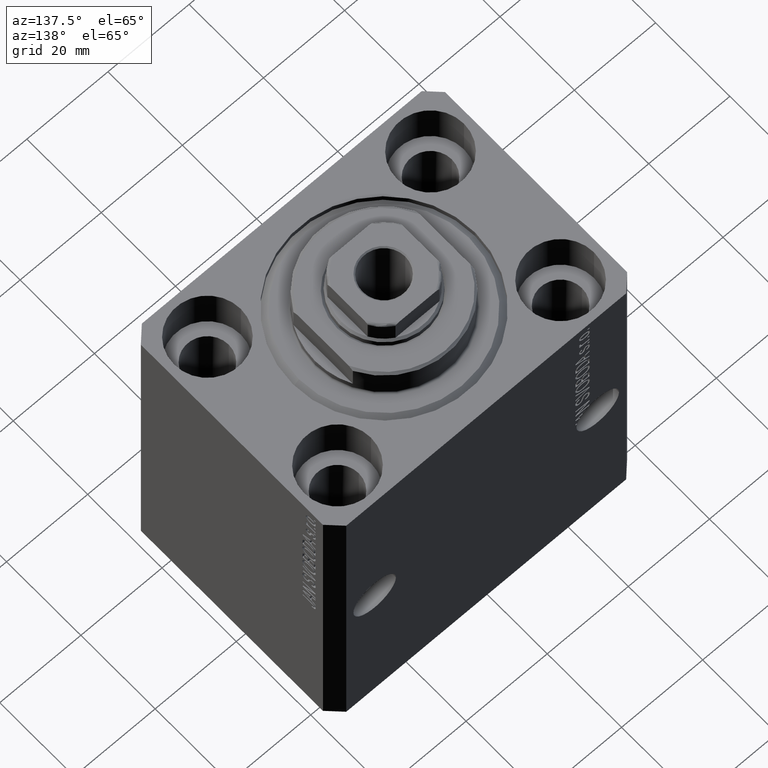
[diagram: clean part render]
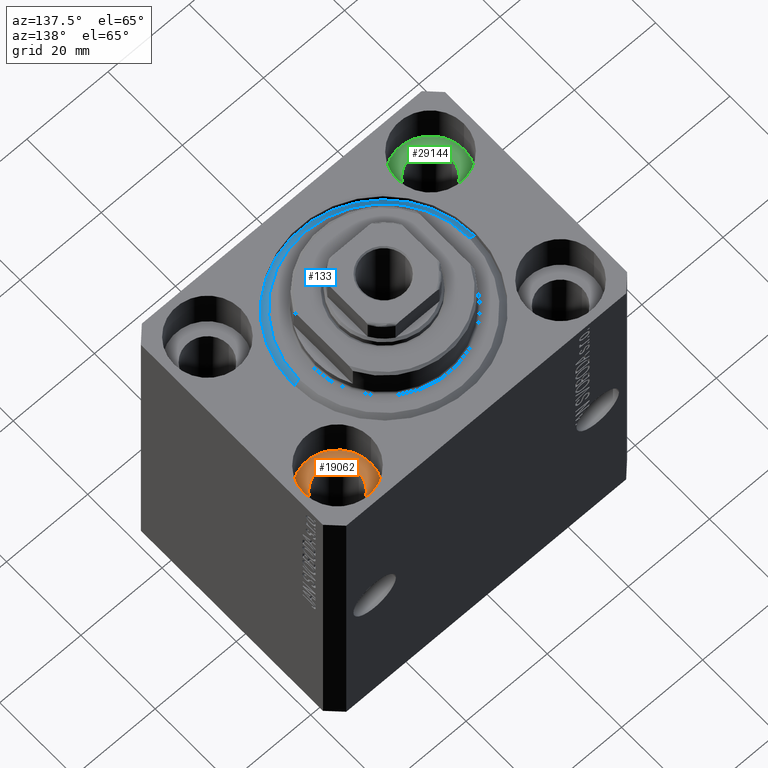
[diagram: same view with three faces highlighted in distinct colors, each labeled with its STEP entity id]
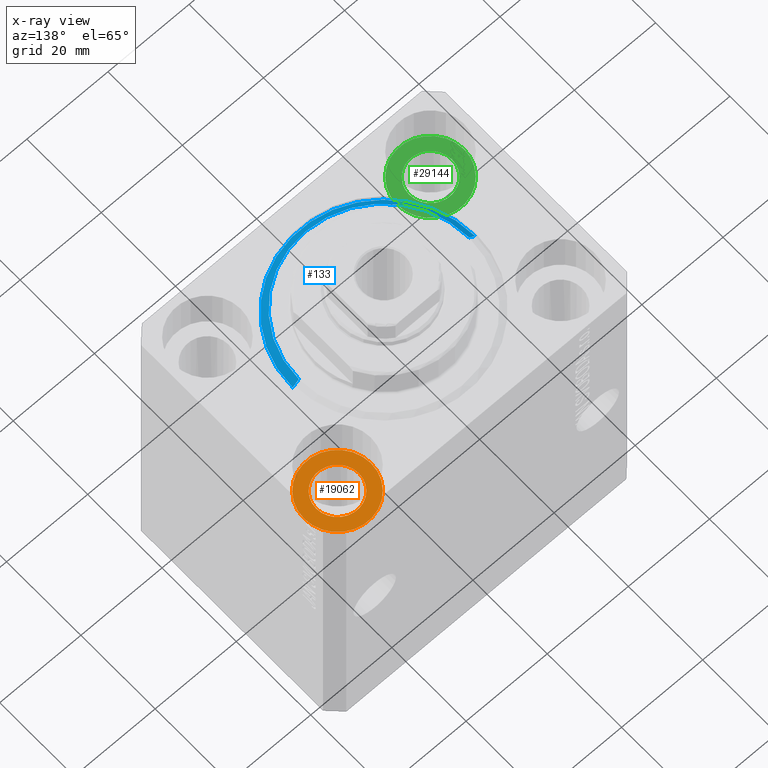
[diagram: x-ray of the same camera — body ghosted, the three highlighted faces saturated]
A machine part, auxiliary view with three faces highlighted in distinct colors.
The next image is the same camera in x-ray (body ghosted, the three faces saturated) — at least one of them is partly hidden behind the body in this view.
Their STEP definitions:

[orange] entity #19062 — the highlighted planar face has unit normal (0, 0, 1).
#895 = VERTEX_POINT ( 'NONE', #6497 ) ;
#1871 = CARTESIAN_POINT ( 'NONE',  ( 27.49999999999999645, 17.50000000000001066, -11.00000000000000000 ) ) ;
#2595 = EDGE_CURVE ( 'NONE', #895, #26863, #8240, .T. ) ;
#3557 = DIRECTION ( 'NONE',  ( 1.000000000000000000, 0.000000000000000000, -0.000000000000000000 ) ) ;
#3654 = EDGE_CURVE ( 'NONE', #38673, #32396, #36741, .T. ) ;
#4179 = ORIENTED_EDGE ( 'NONE', *, *, #2595, .T. ) ;
#5228 = EDGE_CURVE ( 'NONE', #32396, #38673, #14710, .T. ) ;
#6496 = DIRECTION ( 'NONE',  ( 1.000000000000000000, 0.000000000000000000, 0.000000000000000000 ) ) ;
#6497 = CARTESIAN_POINT ( 'NONE',  ( 35.74999999999999289, 17.50000000000001066, -11.00000000000000000 ) ) ;
#6758 = ORIENTED_EDGE ( 'NONE', *, *, #3654, .F. ) ;
#6869 = CARTESIAN_POINT ( 'NONE',  ( 27.49999999999999645, 17.50000000000001066, -11.00000000000000000 ) ) ;
#6906 = CARTESIAN_POINT ( 'NONE',  ( 19.25000000000000000, 17.50000000000001066, -11.00000000000000000 ) ) ;
#8240 = CIRCLE ( 'NONE', #26734, 8.249999999999992895 ) ;
#8684 = AXIS2_PLACEMENT_3D ( 'NONE', #10273, #37455, #6496 ) ;
#10273 = CARTESIAN_POINT ( 'NONE',  ( 27.49999999999999645, 17.50000000000001066, -11.00000000000000000 ) ) ;
#10407 = AXIS2_PLACEMENT_3D ( 'NONE', #19876, #13643, #27228 ) ;
#11019 = EDGE_LOOP ( 'NONE', ( #39853, #6758 ) ) ;
#13340 = FACE_BOUND ( 'NONE', #11019, .T. ) ;
#13643 = DIRECTION ( 'NONE',  ( 0.000000000000000000, 0.000000000000000000, 1.000000000000000000 ) ) ;
#14710 = CIRCLE ( 'NONE', #20403, 5.249999999999997335 ) ;
#15430 = DIRECTION ( 'NONE',  ( 1.000000000000000000, 0.000000000000000000, 0.000000000000000000 ) ) ;
#16655 = DIRECTION ( 'NONE',  ( 1.000000000000000000, 0.000000000000000000, 0.000000000000000000 ) ) ;
#17557 = CARTESIAN_POINT ( 'NONE',  ( 27.49999999999999645, 17.50000000000001066, -11.00000000000000000 ) ) ;
#19062 = ADVANCED_FACE ( 'NONE', ( #13340, #31159 ), #20466, .T. ) ;
#19876 = CARTESIAN_POINT ( 'NONE',  ( 27.49999999999999645, 17.50000000000001066, -11.00000000000000000 ) ) ;
#20403 = AXIS2_PLACEMENT_3D ( 'NONE', #6869, #37185, #16655 ) ;
#20466 = PLANE ( 'NONE',  #25666 ) ;
#22112 = ORIENTED_EDGE ( 'NONE', *, *, #22820, .T. ) ;
#22820 = EDGE_CURVE ( 'NONE', #26863, #895, #32197, .T. ) ;
#25666 = AXIS2_PLACEMENT_3D ( 'NONE', #17557, #34301, #3557 ) ;
#26618 = CARTESIAN_POINT ( 'NONE',  ( 22.25000000000000000, 17.50000000000001066, -11.00000000000000000 ) ) ;
#26734 = AXIS2_PLACEMENT_3D ( 'NONE', #1871, #33033, #15430 ) ;
#26863 = VERTEX_POINT ( 'NONE', #6906 ) ;
#27228 = DIRECTION ( 'NONE',  ( 1.000000000000000000, 0.000000000000000000, 0.000000000000000000 ) ) ;
#30164 = CARTESIAN_POINT ( 'NONE',  ( 32.74999999999999289, 17.50000000000001066, -11.00000000000000000 ) ) ;
#31159 = FACE_OUTER_BOUND ( 'NONE', #41129, .T. ) ;
#32197 = CIRCLE ( 'NONE', #8684, 8.249999999999992895 ) ;
#32396 = VERTEX_POINT ( 'NONE', #30164 ) ;
#33033 = DIRECTION ( 'NONE',  ( 0.000000000000000000, 0.000000000000000000, 1.000000000000000000 ) ) ;
#34301 = DIRECTION ( 'NONE',  ( 0.000000000000000000, 0.000000000000000000, 1.000000000000000000 ) ) ;
#36741 = CIRCLE ( 'NONE', #10407, 5.249999999999997335 ) ;
#37185 = DIRECTION ( 'NONE',  ( 0.000000000000000000, 0.000000000000000000, 1.000000000000000000 ) ) ;
#37455 = DIRECTION ( 'NONE',  ( 0.000000000000000000, 0.000000000000000000, 1.000000000000000000 ) ) ;
#38673 = VERTEX_POINT ( 'NONE', #26618 ) ;
#39853 = ORIENTED_EDGE ( 'NONE', *, *, #5228, .F. ) ;
#41129 = EDGE_LOOP ( 'NONE', ( #4179, #22112 ) ) ;

[blue] entity #133 — the highlighted conical surface has half-angle 45 deg.
#133 = ADVANCED_FACE ( 'NONE', ( #31410 ), #3215, .T. ) ;
#327 = DIRECTION ( 'NONE',  ( -0.000000000000000000, -0.000000000000000000, 1.000000000000000000 ) ) ;
#730 = VERTEX_POINT ( 'NONE', #4517 ) ;
#1722 = ORIENTED_EDGE ( 'NONE', *, *, #42582, .F. ) ;
#2838 = EDGE_CURVE ( 'NONE', #8881, #13667, #33913, .T. ) ;
#3215 = CONICAL_SURFACE ( 'NONE', #10315, 22.50000000000000355, 0.7853981633974517207 ) ;
#3396 = DIRECTION ( 'NONE',  ( -0.7071067811865500152, 8.659560562354963673E-17, 0.7071067811865451302 ) ) ;
#4300 = DIRECTION ( 'NONE',  ( 1.000000000000000000, 0.000000000000000000, 0.000000000000000000 ) ) ;
#4517 = CARTESIAN_POINT ( 'NONE',  ( 20.99999999999998934, 0.000000000000000000, 0.000000000000000000 ) ) ;
#6364 = VECTOR ( 'NONE', #26717, 1000.000000000000114 ) ;
#8881 = VERTEX_POINT ( 'NONE', #30615 ) ;
#10315 = AXIS2_PLACEMENT_3D ( 'NONE', #28515, #24732, #14912 ) ;
#11431 = DIRECTION ( 'NONE',  ( -0.000000000000000000, -0.000000000000000000, -1.000000000000000000 ) ) ;
#12759 = CARTESIAN_POINT ( 'NONE',  ( -22.50000000000000355, 2.755455298081545172E-15, 1.500000000000001332 ) ) ;
#13667 = VERTEX_POINT ( 'NONE', #22552 ) ;
#13681 = DIRECTION ( 'NONE',  ( 1.000000000000000000, 0.000000000000000000, 0.000000000000000000 ) ) ;
#13924 = VECTOR ( 'NONE', #3396, 1000.000000000000114 ) ;
#14261 = AXIS2_PLACEMENT_3D ( 'NONE', #34614, #327, #13681 ) ;
#14912 = DIRECTION ( 'NONE',  ( 1.000000000000000000, 0.000000000000000000, 0.000000000000000000 ) ) ;
#19489 = ORIENTED_EDGE ( 'NONE', *, *, #38501, .T. ) ;
#19496 = EDGE_LOOP ( 'NONE', ( #43928, #41555, #19489, #1722 ) ) ;
#20078 = CIRCLE ( 'NONE', #29260, 20.99999999999998934 ) ;
#22552 = CARTESIAN_POINT ( 'NONE',  ( -22.50000000000000355, 0.000000000000000000, 1.500000000000001332 ) ) ;
#23361 = EDGE_CURVE ( 'NONE', #730, #8881, #20078, .T. ) ;
#24732 = DIRECTION ( 'NONE',  ( -0.000000000000000000, -0.000000000000000000, 1.000000000000000000 ) ) ;
#26514 = CARTESIAN_POINT ( 'NONE',  ( 22.50000000000000355, 0.000000000000000000, 1.500000000000001332 ) ) ;
#26717 = DIRECTION ( 'NONE',  ( 0.7071067811865500152, 0.000000000000000000, 0.7071067811865451302 ) ) ;
#27922 = CARTESIAN_POINT ( 'NONE',  ( 0.000000000000000000, 0.000000000000000000, 0.000000000000000000 ) ) ;
#28515 = CARTESIAN_POINT ( 'NONE',  ( 0.000000000000000000, 0.000000000000000000, 1.500000000000001332 ) ) ;
#29260 = AXIS2_PLACEMENT_3D ( 'NONE', #27922, #11431, #4300 ) ;
#30615 = CARTESIAN_POINT ( 'NONE',  ( -20.99999999999998934, 2.663606788145492628E-15, 0.000000000000000000 ) ) ;
#30716 = CARTESIAN_POINT ( 'NONE',  ( 22.50000000000000355, 2.755455298081545172E-15, 1.500000000000001332 ) ) ;
#31410 = FACE_OUTER_BOUND ( 'NONE', #19496, .T. ) ;
#33484 = CIRCLE ( 'NONE', #14261, 22.50000000000000355 ) ;
#33913 = LINE ( 'NONE', #12759, #13924 ) ;
#34614 = CARTESIAN_POINT ( 'NONE',  ( 0.000000000000000000, 0.000000000000000000, 1.500000000000001332 ) ) ;
#36557 = LINE ( 'NONE', #26514, #6364 ) ;
#38501 = EDGE_CURVE ( 'NONE', #730, #40468, #36557, .T. ) ;
#40468 = VERTEX_POINT ( 'NONE', #30716 ) ;
#41555 = ORIENTED_EDGE ( 'NONE', *, *, #23361, .F. ) ;
#42582 = EDGE_CURVE ( 'NONE', #13667, #40468, #33484, .T. ) ;
#43928 = ORIENTED_EDGE ( 'NONE', *, *, #2838, .F. ) ;

[green] entity #29144 — the highlighted planar face has unit normal (0, 0, 1).
#301 = DIRECTION ( 'NONE',  ( 0.000000000000000000, 0.000000000000000000, 1.000000000000000000 ) ) ;
#542 = DIRECTION ( 'NONE',  ( 1.000000000000000000, 0.000000000000000000, 0.000000000000000000 ) ) ;
#806 = FACE_OUTER_BOUND ( 'NONE', #19242, .T. ) ;
#899 = DIRECTION ( 'NONE',  ( 1.000000000000000000, 0.000000000000000000, 0.000000000000000000 ) ) ;
#2187 = DIRECTION ( 'NONE',  ( 1.000000000000000000, 0.000000000000000000, 0.000000000000000000 ) ) ;
#2486 = EDGE_CURVE ( 'NONE', #6339, #22851, #23888, .T. ) ;
#3144 = CARTESIAN_POINT ( 'NONE',  ( -19.25000000000000355, -17.50000000000000000, -11.00000000000000000 ) ) ;
#3337 = AXIS2_PLACEMENT_3D ( 'NONE', #17285, #27976, #7056 ) ;
#3418 = CARTESIAN_POINT ( 'NONE',  ( -27.50000000000000355, -17.50000000000000000, -11.00000000000000000 ) ) ;
#4142 = FACE_BOUND ( 'NONE', #36248, .T. ) ;
#6339 = VERTEX_POINT ( 'NONE', #31764 ) ;
#6523 = EDGE_CURVE ( 'NONE', #43606, #27405, #10508, .T. ) ;
#7056 = DIRECTION ( 'NONE',  ( 1.000000000000000000, 0.000000000000000000, -0.000000000000000000 ) ) ;
#8858 = CARTESIAN_POINT ( 'NONE',  ( -27.50000000000000355, -17.50000000000000000, -11.00000000000000000 ) ) ;
#9618 = EDGE_CURVE ( 'NONE', #27405, #43606, #28972, .T. ) ;
#9709 = CARTESIAN_POINT ( 'NONE',  ( -22.25000000000000355, -17.50000000000000000, -11.00000000000000000 ) ) ;
#9823 = DIRECTION ( 'NONE',  ( 0.000000000000000000, 0.000000000000000000, 1.000000000000000000 ) ) ;
#10472 = AXIS2_PLACEMENT_3D ( 'NONE', #43359, #26398, #542 ) ;
#10508 = CIRCLE ( 'NONE', #10472, 5.250000000000000888 ) ;
#10661 = ORIENTED_EDGE ( 'NONE', *, *, #30612, .T. ) ;
#14378 = PLANE ( 'NONE',  #3337 ) ;
#17285 = CARTESIAN_POINT ( 'NONE',  ( -27.50000000000000355, -17.50000000000000000, -11.00000000000000000 ) ) ;
#17687 = CARTESIAN_POINT ( 'NONE',  ( -32.75000000000000000, -17.50000000000000000, -11.00000000000000000 ) ) ;
#19242 = EDGE_LOOP ( 'NONE', ( #10661, #23117 ) ) ;
#22851 = VERTEX_POINT ( 'NONE', #3144 ) ;
#23117 = ORIENTED_EDGE ( 'NONE', *, *, #2486, .T. ) ;
#23888 = CIRCLE ( 'NONE', #34572, 8.250000000000000000 ) ;
#24135 = DIRECTION ( 'NONE',  ( 1.000000000000000000, 0.000000000000000000, 0.000000000000000000 ) ) ;
#25408 = AXIS2_PLACEMENT_3D ( 'NONE', #8858, #42522, #2187 ) ;
#26398 = DIRECTION ( 'NONE',  ( 0.000000000000000000, 0.000000000000000000, 1.000000000000000000 ) ) ;
#27405 = VERTEX_POINT ( 'NONE', #9709 ) ;
#27976 = DIRECTION ( 'NONE',  ( 0.000000000000000000, 0.000000000000000000, 1.000000000000000000 ) ) ;
#28972 = CIRCLE ( 'NONE', #25408, 5.250000000000000888 ) ;
#29144 = ADVANCED_FACE ( 'NONE', ( #4142, #806 ), #14378, .T. ) ;
#30391 = AXIS2_PLACEMENT_3D ( 'NONE', #40358, #9823, #899 ) ;
#30612 = EDGE_CURVE ( 'NONE', #22851, #6339, #40371, .T. ) ;
#31764 = CARTESIAN_POINT ( 'NONE',  ( -35.75000000000000711, -17.50000000000000000, -11.00000000000000000 ) ) ;
#34572 = AXIS2_PLACEMENT_3D ( 'NONE', #3418, #301, #24135 ) ;
#36248 = EDGE_LOOP ( 'NONE', ( #43804, #37066 ) ) ;
#37066 = ORIENTED_EDGE ( 'NONE', *, *, #6523, .F. ) ;
#40358 = CARTESIAN_POINT ( 'NONE',  ( -27.50000000000000355, -17.50000000000000000, -11.00000000000000000 ) ) ;
#40371 = CIRCLE ( 'NONE', #30391, 8.250000000000000000 ) ;
#42522 = DIRECTION ( 'NONE',  ( 0.000000000000000000, 0.000000000000000000, 1.000000000000000000 ) ) ;
#43359 = CARTESIAN_POINT ( 'NONE',  ( -27.50000000000000355, -17.50000000000000000, -11.00000000000000000 ) ) ;
#43606 = VERTEX_POINT ( 'NONE', #17687 ) ;
#43804 = ORIENTED_EDGE ( 'NONE', *, *, #9618, .F. ) ;